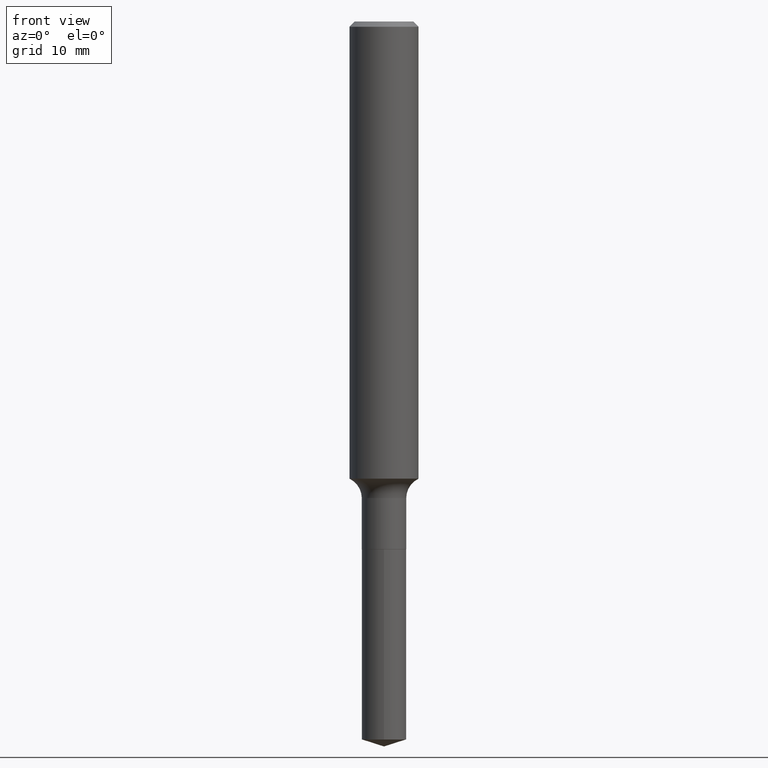
[diagram: clean part render]
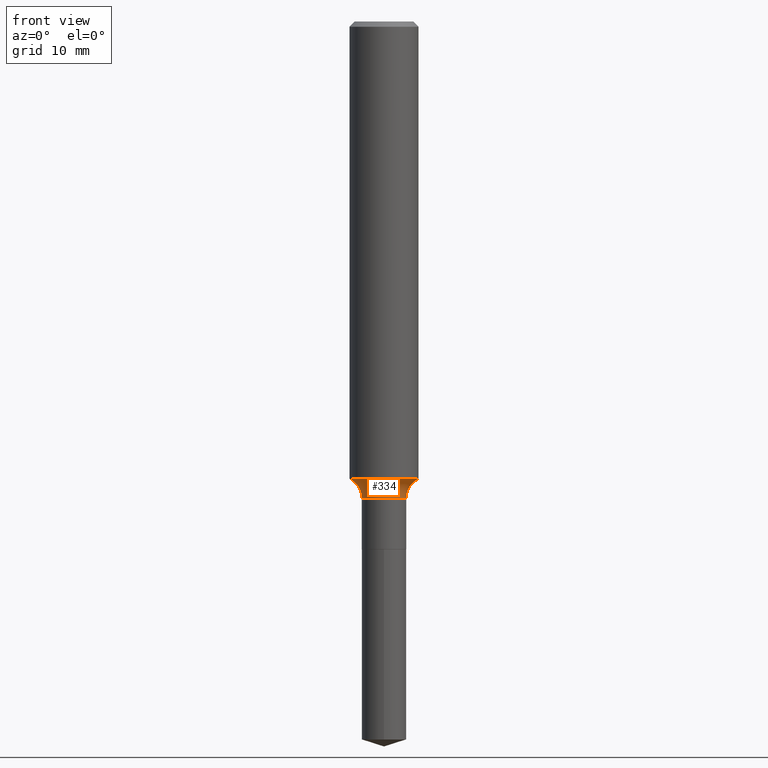
[diagram: same view with one face highlighted and labeled with its STEP entity id]
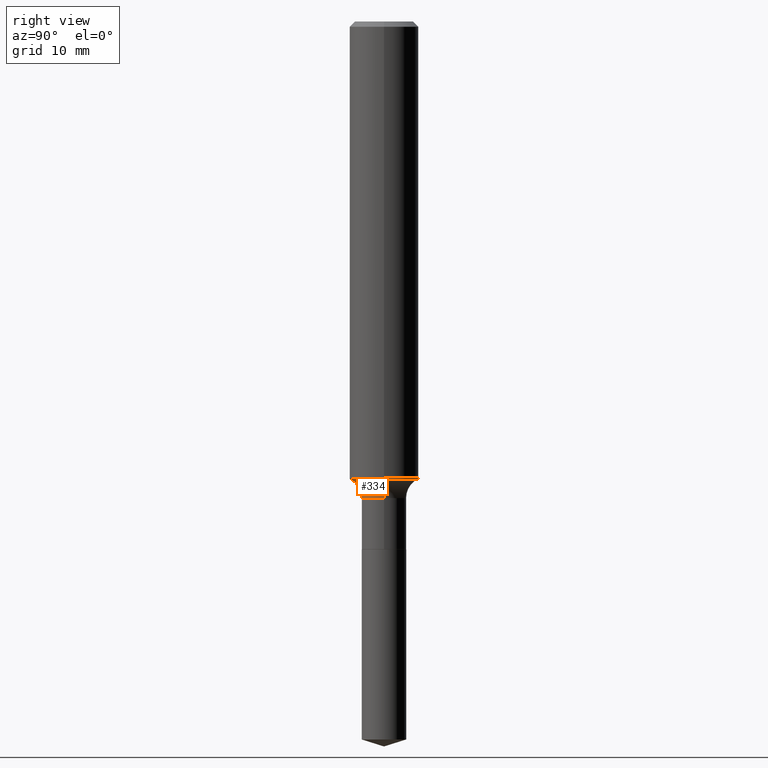
[diagram: same view with one face highlighted and labeled with its STEP entity id]
A machine part, front view. The second image highlights one B-rep face of the part: STEP entity #334.
A second angle (right view) of the same face is appended — the face is thin or edge-on in the first view.
In plain terms, the highlighted toroidal blend (fillet) surface has major radius 4.0259 mm and minor (blend) radius 1.9812 mm.
Its self-contained STEP definition (entity closure, byte-faithful):
#4 = AXIS2_PLACEMENT_3D ( 'NONE', #128, #276, #400 ) ;
#9 = VERTEX_POINT ( 'NONE', #257 ) ;
#10 = AXIS2_PLACEMENT_3D ( 'NONE', #445, #409, #370 ) ;
#13 = CIRCLE ( 'NONE', #57, 0.07800000000000002764 ) ;
#21 = ORIENTED_EDGE ( 'NONE', *, *, #426, .T. ) ;
#57 = AXIS2_PLACEMENT_3D ( 'NONE', #313, #472, #351 ) ;
#87 = EDGE_CURVE ( 'NONE', #111, #179, #166, .T. ) ;
#99 = CARTESIAN_POINT ( 'NONE',  ( -0.1250000000000002498, -4.891481209924620531E-15, -1.655360309483927761 ) ) ;
#111 = VERTEX_POINT ( 'NONE', #99 ) ;
#128 = CARTESIAN_POINT ( 'NONE',  ( 4.220390065714308775E-29, -6.025598494575499954E-15, -1.725800000000000001 ) ) ;
#166 = CIRCLE ( 'NONE', #10, 0.1250000000000001943 ) ;
#170 = DIRECTION ( 'NONE',  ( 1.000000000000000000, -6.982962677686267499E-15, 0.000000000000000000 ) ) ;
#179 = VERTEX_POINT ( 'NONE', #196 ) ;
#196 = CARTESIAN_POINT ( 'NONE',  ( 0.1250000000000002498, -6.652529964335533835E-15, -1.655360309483927761 ) ) ;
#201 = CIRCLE ( 'NONE', #487, 0.07800000000000002764 ) ;
#205 = CARTESIAN_POINT ( 'NONE',  ( -0.1584999999999999742, -4.899388258395741342E-15, -1.725800000000000001 ) ) ;
#210 = FACE_OUTER_BOUND ( 'NONE', #241, .T. ) ;
#211 = ORIENTED_EDGE ( 'NONE', *, *, #438, .F. ) ;
#212 = DIRECTION ( 'NONE',  ( -2.445468806185136597E-29, 3.491481338843145583E-15, 1.000000000000000000 ) ) ;
#241 = EDGE_LOOP ( 'NONE', ( #279, #364, #21, #211 ) ) ;
#243 = TOROIDAL_SURFACE ( 'NONE', #4, 0.1584999999999999742, 0.07800000000000002764 ) ;
#257 = CARTESIAN_POINT ( 'NONE',  ( 0.08049999999999998823, -6.587726990129244613E-15, -1.725800000000000001 ) ) ;
#276 = DIRECTION ( 'NONE',  ( -2.445468806185136597E-29, 3.491481338843145583E-15, 1.000000000000000000 ) ) ;
#279 = ORIENTED_EDGE ( 'NONE', *, *, #87, .F. ) ;
#284 = CARTESIAN_POINT ( 'NONE',  ( 4.220390065714308775E-29, -6.025598494575499954E-15, -1.725800000000000001 ) ) ;
#313 = CARTESIAN_POINT ( 'NONE',  ( 0.1584999999999999742, -7.132398078988774237E-15, -1.725800000000000001 ) ) ;
#321 = DIRECTION ( 'NONE',  ( 7.105427357601001859E-15, 1.000000000000000000, -3.491481338843145583E-15 ) ) ;
#334 = ADVANCED_FACE ( 'NONE', ( #210 ), #243, .F. ) ;
#351 = DIRECTION ( 'NONE',  ( 1.000000000000000000, -6.982962677686268288E-15, 0.000000000000000000 ) ) ;
#364 = ORIENTED_EDGE ( 'NONE', *, *, #446, .T. ) ;
#370 = DIRECTION ( 'NONE',  ( 1.000000000000000000, -6.982962677686267499E-15, 0.000000000000000000 ) ) ;
#373 = AXIS2_PLACEMENT_3D ( 'NONE', #284, #212, #170 ) ;
#392 = VERTEX_POINT ( 'NONE', #468 ) ;
#397 = CIRCLE ( 'NONE', #373, 0.08049999999999998823 ) ;
#398 = DIRECTION ( 'NONE',  ( -1.000000000000000000, 7.105427357601001859E-15, 0.000000000000000000 ) ) ;
#400 = DIRECTION ( 'NONE',  ( 1.000000000000000000, -6.982962677686265133E-15, 4.883557194083112901E-29 ) ) ;
#409 = DIRECTION ( 'NONE',  ( -2.445468806185136597E-29, 3.491481338843145583E-15, 1.000000000000000000 ) ) ;
#426 = EDGE_CURVE ( 'NONE', #392, #9, #397, .T. ) ;
#438 = EDGE_CURVE ( 'NONE', #179, #9, #13, .T. ) ;
#445 = CARTESIAN_POINT ( 'NONE',  ( 4.048131999839919317E-29, -5.779659629624748130E-15, -1.655360309483927761 ) ) ;
#446 = EDGE_CURVE ( 'NONE', #111, #392, #201, .T. ) ;
#468 = CARTESIAN_POINT ( 'NONE',  ( -0.08049999999999998823, -5.776049893930784705E-15, -1.725800000000000001 ) ) ;
#472 = DIRECTION ( 'NONE',  ( -6.982962677686266711E-15, -1.000000000000000000, 3.491481338843145583E-15 ) ) ;
#487 = AXIS2_PLACEMENT_3D ( 'NONE', #205, #321, #398 ) ;